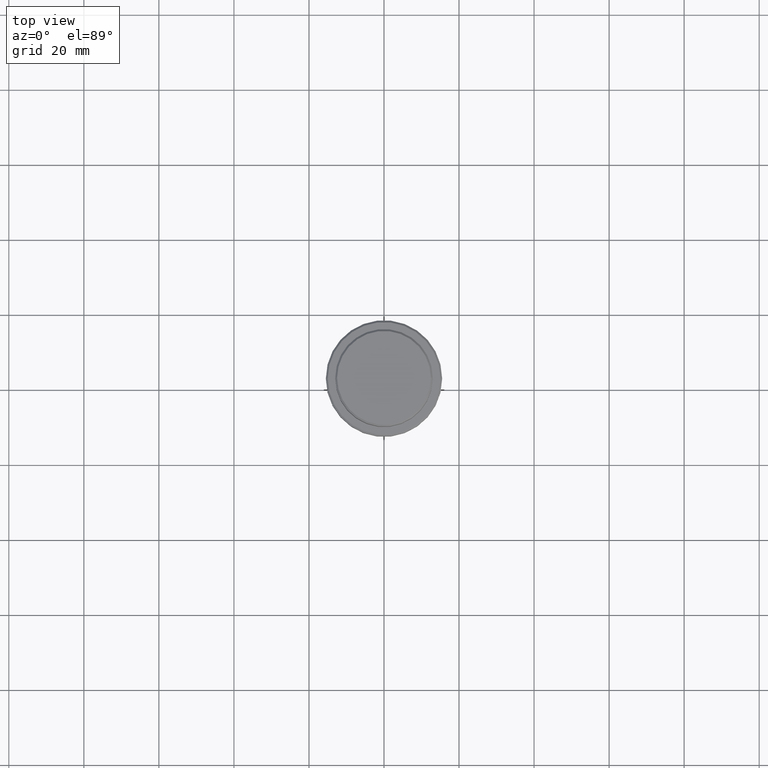
[diagram: clean part render]
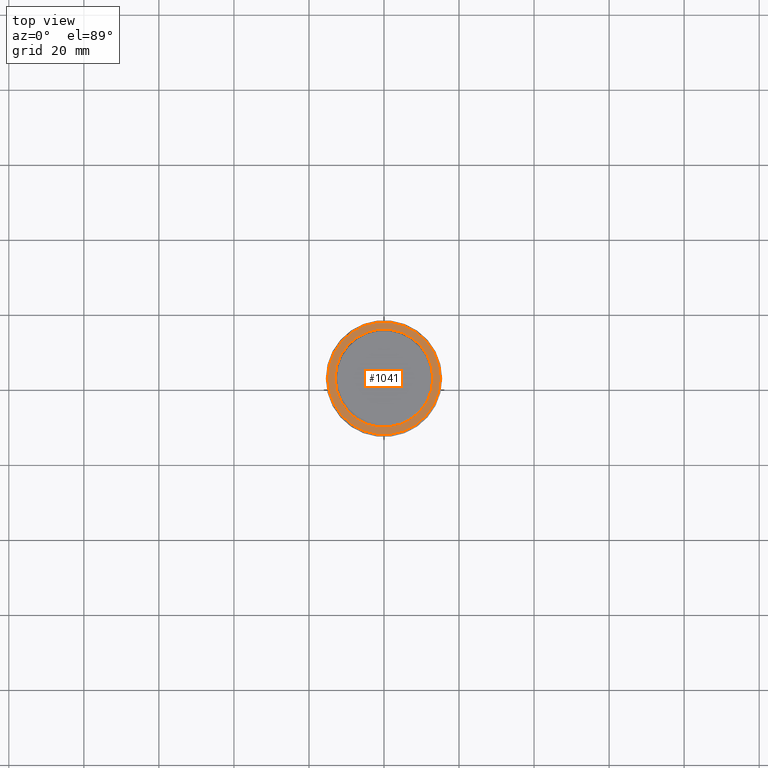
[diagram: same view with one face highlighted and labeled with its STEP entity id]
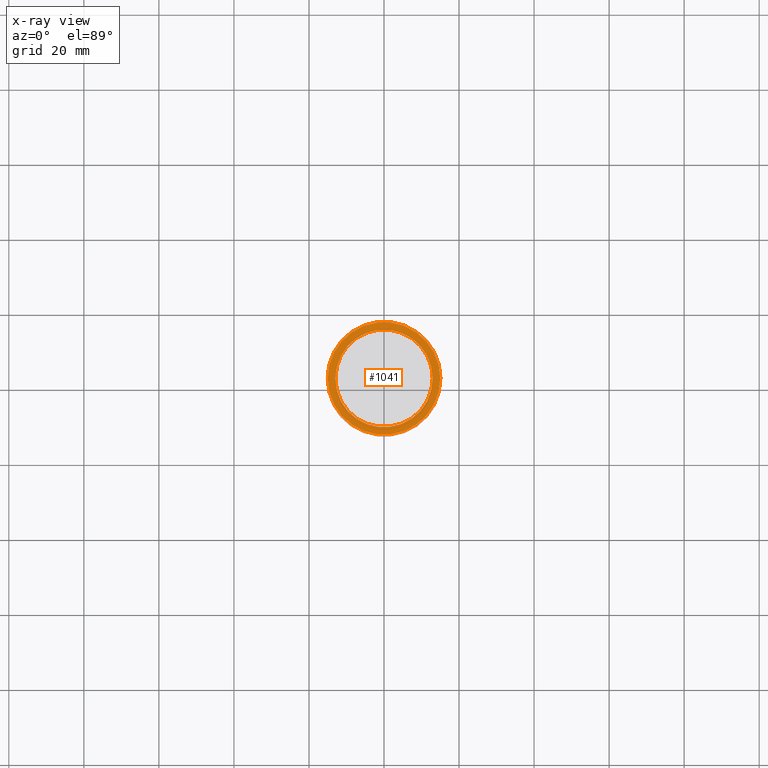
[diagram: x-ray of the same camera — body ghosted, the highlighted face saturated]
A machine part, top view. The second image highlights one B-rep face of the part: STEP entity #1041.
The next image is the same camera in x-ray: the body ghosted, the highlighted face saturated — about 0% of this face is hidden behind the body in this view.
In plain terms, the highlighted planar face has unit normal (0, -0, 1).
Its self-contained STEP definition (entity closure, byte-faithful):
#19 = AXIS2_PLACEMENT_3D ( 'NONE', #1110, #570, #131 ) ;
#24 = CARTESIAN_POINT ( 'NONE',  ( 0.000000000000000000, 0.000000000000000000, -9.000000000000000000 ) ) ;
#79 = EDGE_LOOP ( 'NONE', ( #719, #98 ) ) ;
#83 = EDGE_CURVE ( 'NONE', #1121, #616, #1138, .T. ) ;
#98 = ORIENTED_EDGE ( 'NONE', *, *, #634, .T. ) ;
#129 = ORIENTED_EDGE ( 'NONE', *, *, #83, .T. ) ;
#131 = DIRECTION ( 'NONE',  ( 1.000000000000000000, 0.000000000000000000, 0.000000000000000000 ) ) ;
#133 = EDGE_CURVE ( 'NONE', #354, #313, #828, .T. ) ;
#193 = AXIS2_PLACEMENT_3D ( 'NONE', #678, #997, #436 ) ;
#235 = AXIS2_PLACEMENT_3D ( 'NONE', #24, #467, #250 ) ;
#245 = PLANE ( 'NONE',  #193 ) ;
#250 = DIRECTION ( 'NONE',  ( 1.000000000000000000, 0.000000000000000000, 0.000000000000000000 ) ) ;
#313 = VERTEX_POINT ( 'NONE', #1250 ) ;
#348 = CARTESIAN_POINT ( 'NONE',  ( 14.99999999999998579, 1.867586368699712587E-15, -9.000000000000000000 ) ) ;
#354 = VERTEX_POINT ( 'NONE', #1193 ) ;
#389 = DIRECTION ( 'NONE',  ( 1.000000000000000000, 0.000000000000000000, 0.000000000000000000 ) ) ;
#436 = DIRECTION ( 'NONE',  ( 1.000000000000000000, 0.000000000000000000, 0.000000000000000000 ) ) ;
#467 = DIRECTION ( 'NONE',  ( 0.000000000000000000, 0.000000000000000000, -1.000000000000000000 ) ) ;
#522 = EDGE_CURVE ( 'NONE', #616, #1121, #1340, .T. ) ;
#570 = DIRECTION ( 'NONE',  ( -0.000000000000000000, -0.000000000000000000, 1.000000000000000000 ) ) ;
#600 = DIRECTION ( 'NONE',  ( 0.000000000000000000, 0.000000000000000000, -1.000000000000000000 ) ) ;
#616 = VERTEX_POINT ( 'NONE', #348 ) ;
#634 = EDGE_CURVE ( 'NONE', #313, #354, #850, .T. ) ;
#678 = CARTESIAN_POINT ( 'NONE',  ( 0.000000000000000000, 12.49999999999999289, -9.000000000000000000 ) ) ;
#719 = ORIENTED_EDGE ( 'NONE', *, *, #133, .T. ) ;
#828 = CIRCLE ( 'NONE', #1116, 12.99999999999999467 ) ;
#850 = CIRCLE ( 'NONE', #235, 12.99999999999999467 ) ;
#888 = FACE_OUTER_BOUND ( 'NONE', #1327, .T. ) ;
#997 = DIRECTION ( 'NONE',  ( 0.000000000000000000, -0.000000000000000000, 1.000000000000000000 ) ) ;
#1041 = ADVANCED_FACE ( 'NONE', ( #888, #1218 ), #245, .T. ) ;
#1110 = CARTESIAN_POINT ( 'NONE',  ( 0.000000000000000000, 0.000000000000000000, -9.000000000000000000 ) ) ;
#1116 = AXIS2_PLACEMENT_3D ( 'NONE', #1246, #600, #389 ) ;
#1119 = AXIS2_PLACEMENT_3D ( 'NONE', #1212, #1415, #1313 ) ;
#1121 = VERTEX_POINT ( 'NONE', #1225 ) ;
#1138 = CIRCLE ( 'NONE', #19, 14.99999999999998579 ) ;
#1193 = CARTESIAN_POINT ( 'NONE',  ( 12.99999999999999467, 0.000000000000000000, -9.000000000000000000 ) ) ;
#1212 = CARTESIAN_POINT ( 'NONE',  ( 0.000000000000000000, 0.000000000000000000, -9.000000000000000000 ) ) ;
#1218 = FACE_BOUND ( 'NONE', #79, .T. ) ;
#1225 = CARTESIAN_POINT ( 'NONE',  ( -14.99999999999998579, 0.000000000000000000, -9.000000000000000000 ) ) ;
#1246 = CARTESIAN_POINT ( 'NONE',  ( 0.000000000000000000, 0.000000000000000000, -9.000000000000000000 ) ) ;
#1250 = CARTESIAN_POINT ( 'NONE',  ( -12.99999999999999467, 1.592040838891558504E-15, -9.000000000000000000 ) ) ;
#1313 = DIRECTION ( 'NONE',  ( 1.000000000000000000, 0.000000000000000000, 0.000000000000000000 ) ) ;
#1327 = EDGE_LOOP ( 'NONE', ( #129, #1388 ) ) ;
#1340 = CIRCLE ( 'NONE', #1119, 14.99999999999998579 ) ;
#1388 = ORIENTED_EDGE ( 'NONE', *, *, #522, .T. ) ;
#1415 = DIRECTION ( 'NONE',  ( -0.000000000000000000, -0.000000000000000000, 1.000000000000000000 ) ) ;